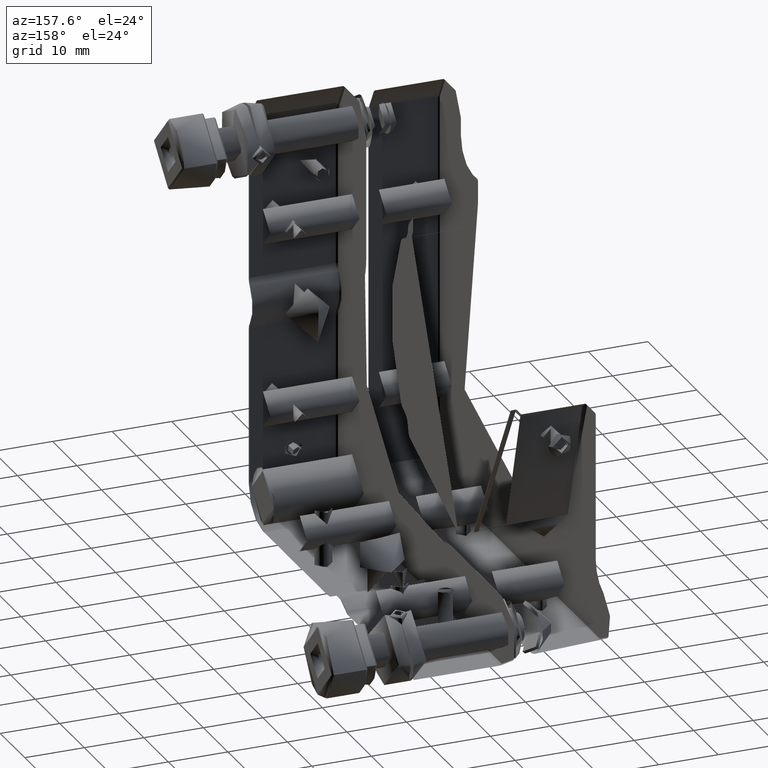
[diagram: clean part render]
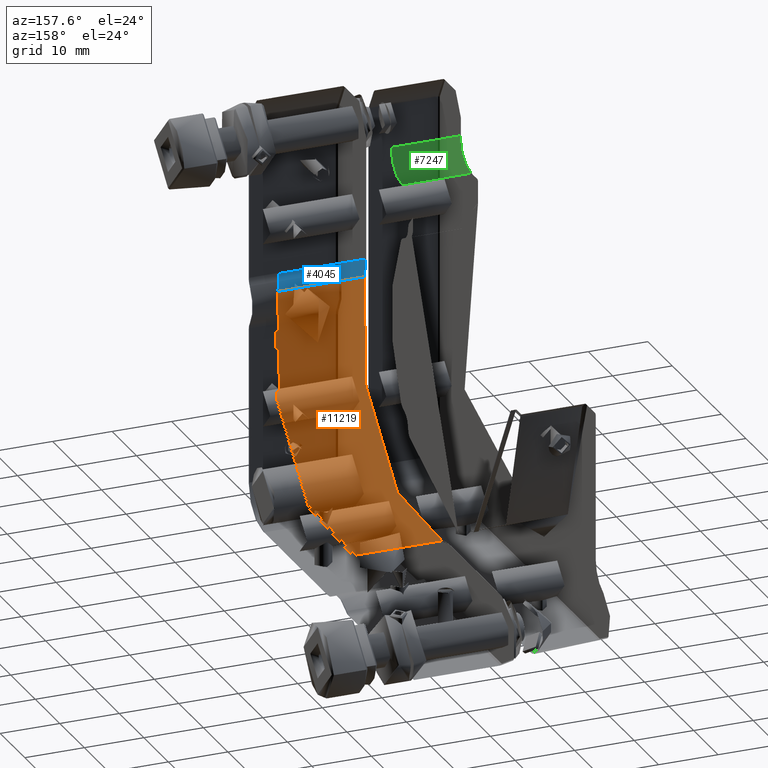
[diagram: same view with three faces highlighted in distinct colors, each labeled with its STEP entity id]
A machine part, auxiliary view with three faces highlighted in distinct colors.
Their STEP definitions:

[orange] entity #11219 — the highlighted cylindrical surface (partial cylindrical patch) has radius 25 mm, axis along (1, 0, 0).
#50 = CARTESIAN_POINT ( 'NONE',  ( 3.273873242885294133, -27.69120319725786317, 51.76312007283775785 ) ) ;
#64 = CARTESIAN_POINT ( 'NONE',  ( 10.00113001683670966, 0.9766342288857379206, 25.87352754220076534 ) ) ;
#123 = CARTESIAN_POINT ( 'NONE',  ( 10.28287489757706474, -27.71344598607095833, 50.12793082185242355 ) ) ;
#134 = CARTESIAN_POINT ( 'NONE',  ( 7.265468133704162668, 2.433194226710697627, 26.13625612694094613 ) ) ;
#195 = VERTEX_POINT ( 'NONE', #7940 ) ;
#196 = CARTESIAN_POINT ( 'NONE',  ( 3.299953574887351415, -27.64585130174290839, 52.50102717713715350 ) ) ;
#210 = CARTESIAN_POINT ( 'NONE',  ( 3.466382212514170114, -0.1074875647699910092, 25.73552941036338737 ) ) ;
#271 = CARTESIAN_POINT ( 'NONE',  ( 3.656119607611171496, -27.52932920605249123, 53.66655397209311218 ) ) ;
#418 = CARTESIAN_POINT ( 'NONE',  ( 5.137812428875689008, 1.932973826872373291, 26.03587686594990913 ) ) ;
#566 = FACE_BOUND ( 'NONE', #11548, .T. ) ;
#1045 = CARTESIAN_POINT ( 'NONE',  ( 9.506763672845808699, -27.67723634732844928, 49.17835109450631847 ) ) ;
#1113 = CARTESIAN_POINT ( 'NONE',  ( 7.521219772578337626, -27.60876644452097395, 48.27494671956478811 ) ) ;
#1185 = CARTESIAN_POINT ( 'NONE',  ( 3.766714016812477084, -27.71342763862443803, 50.12618406967465745 ) ) ;
#1260 = CARTESIAN_POINT ( 'NONE',  ( 9.502031261369594972, -27.35801694386234217, 54.82542223375834567 ) ) ;
#1333 = CARTESIAN_POINT ( 'NONE',  ( 10.74885028145612687, -27.64583575095340606, 52.50140545190906494 ) ) ;
#1346 = CARTESIAN_POINT ( 'NONE',  ( 4.195668267474858659, 1.157109249958580888, 25.90137745180575024 ) ) ;
#1926 = CARTESIAN_POINT ( 'NONE',  ( 4.541965836318080818, -27.67723710114381319, 49.17863191446870985 ) ) ;
#2002 = CARTESIAN_POINT ( 'NONE',  ( 3.654323267521220053, -2.980419281088630079, 25.60033672631038471 ) ) ;
#2046 = ORIENTED_EDGE ( 'NONE', *, *, #2264, .T. ) ;
#2139 = CARTESIAN_POINT ( 'NONE',  ( 10.68292656178153166, -2.278262408532561345, 25.59963113814684377 ) ) ;
#2193 = CARTESIAN_POINT ( 'NONE',  ( 10.77345944765936459, -27.66320733132643994, 52.25842280324155098 ) ) ;
#2203 = CARTESIAN_POINT ( 'NONE',  ( 10.27343706863608297, 0.5712492003034167487, 25.81635924465292220 ) ) ;
#2234 = VECTOR ( 'NONE', #6187, 1000.000000000000000 ) ;
#2264 = EDGE_CURVE ( 'NONE', #14096, #13342, #2354, .T. ) ;
#2270 = CARTESIAN_POINT ( 'NONE',  ( 10.39989606198359517, -27.71684027712199239, 50.34800180835369332 ) ) ;
#2343 = CARTESIAN_POINT ( 'NONE',  ( 10.01183918034666753, -27.70241773858794687, 49.72019314764617803 ) ) ;
#2354 = CIRCLE ( 'NONE', #4916, 25.00000000000000000 ) ;
#2418 = CARTESIAN_POINT ( 'NONE',  ( 8.691263178566254410, -27.63965803872548577, 48.63184016250288977 ) ) ;
#2455 = FACE_BOUND ( 'NONE', #3781, .T. ) ;
#2488 = CARTESIAN_POINT ( 'NONE',  ( 5.359049728303036275, -27.25819735188628101, 55.36889461507549726 ) ) ;
#2523 = DIRECTION ( 'NONE',  ( 0.000000000000000000, 0.000000000000000000, -1.000000000000000000 ) ) ;
#2577 = CARTESIAN_POINT ( 'NONE',  ( 6.775100157488094688, 2.432658544296108172, 26.13614335773878850 ) ) ;
#2592 = DIRECTION ( 'NONE',  ( -1.000000000000000000, -0.000000000000000000, -0.000000000000000000 ) ) ;
#2597 = CARTESIAN_POINT ( 'NONE',  ( 14.27438067708578906, 5.407908999789166060, 26.95714285714285197 ) ) ;
#2873 = VERTEX_POINT ( 'NONE', #13147 ) ;
#3099 = CARTESIAN_POINT ( 'NONE',  ( 3.369759775490074549, -2.292929379651696298, 25.59939666263960945 ) ) ;
#3161 = CARTESIAN_POINT ( 'NONE',  ( 5.820835509535819519, -4.877127549385903649, 25.69331524209809459 ) ) ;
#3199 = CIRCLE ( 'NONE', #9672, 25.00000000000000000 ) ;
#3239 = CARTESIAN_POINT ( 'NONE',  ( 10.57810858253414210, -0.09496710499693807039, 25.73684832099451825 ) ) ;
#3292 = CARTESIAN_POINT ( 'NONE',  ( 7.272655238768013675, -27.60637630899183037, 48.25000000000012790 ) ) ;
#3305 = CARTESIAN_POINT ( 'NONE',  ( 9.322785488902418649, -4.290288992119322131, 25.64917118819523623 ) ) ;
#3371 = EDGE_CURVE ( 'NONE', #2873, #14096, #12723, .T. ) ;
#3511 = CARTESIAN_POINT ( 'NONE',  ( 8.903185064813644800, -27.28033217635419660, 55.25459805577839489 ) ) ;
#3583 = CARTESIAN_POINT ( 'NONE',  ( 3.773213713538540848, -27.50120595058823270, 53.88455677447824144 ) ) ;
#3594 = CARTESIAN_POINT ( 'NONE',  ( 6.526006665298371701, 2.407771713671298386, 26.13086784741135915 ) ) ;
#3745 = DIRECTION ( 'NONE',  ( 1.000000000000000000, 0.000000000000000000, 0.000000000000000000 ) ) ;
#3781 = EDGE_LOOP ( 'NONE', ( #4118 ) ) ;
#3963 = DIRECTION ( 'NONE',  ( 0.000000000000000000, 0.000000000000000000, -1.000000000000000000 ) ) ;
#4094 = VERTEX_POINT ( 'NONE', #7152 ) ;
#4095 = CARTESIAN_POINT ( 'NONE',  ( 6.051850082481644577, -27.61746461390427143, 48.37003992513722039 ) ) ;
#4118 = ORIENTED_EDGE ( 'NONE', *, *, #13173, .T. ) ;
#4119 = CARTESIAN_POINT ( 'NONE',  ( -0.2256193229141847945, -2.717071376953227979, 50.60000000000000142 ) ) ;
#4120 = B_SPLINE_CURVE_WITH_KNOTS ( 'NONE', 3,
 ( #9741, #14185, #9599, #4095, #10759, #14037, #12952, #7443, #1926, #6354, #5763, #1185, #5463, #5684, #6926, #14318, #50, #8008, #196, #11263, #6853, #271, #3583, #10174, #12421, #8874, #13297, #10093, #2488, #7713, #5614, #13454, #8803, #4676, #4602, #5538, #4526, #9025, #3511, #6779, #1260, #7865, #7785, #12195, #9095, #7941, #6631, #1333, #2193, #11038, #9950, #10023, #12352, #2270, #123, #2343, #13526, #1045, #6709, #9877, #2418, #4384, #13223, #1113, #3292, #8945 ),
 .UNSPECIFIED., .T., .F.,
 ( 4, 2, 2, 2, 2, 2, 2, 2, 2, 2, 2, 2, 2, 2, 2, 2, 2, 2, 2, 2, 2, 2, 2, 2, 2, 2, 2, 2, 2, 2, 2, 2, 4 ),
 ( 0.000000000000000000, 0.0007342141488567177111, 0.001468428297713435422, 0.002202642446570153133, 0.002936856595426870845, 0.003671070744283588989, 0.004405284893140307134, 0.005139499041997025279, 0.005873713190853744291, 0.006607927339710462436, 0.007342141488567180581, 0.008076355637423898726, 0.008810569786280616003, 0.009544783935137335015, 0.01027899808399405403, 0.01101321223285077477, 0.01174742638170749379, 0.01248164053056421453, 0.01321585467942093875, 0.01395006882827766123, 0.01468428297713438371, 0.01541849712599110793, 0.01615271127484783215, 0.01688692542370455463, 0.01762113957256127364, 0.01835535372141799612, 0.01908956787027472207, 0.01982378201913144455, 0.02055799616798816704, 0.02129221031684488952, 0.02202642446570161200, 0.02276063861455833795, 0.02349485276341505696 ),
 .UNSPECIFIED. ) ;
#4257 = CARTESIAN_POINT ( 'NONE',  ( 5.367877768250804316, -4.690277423762418962, 25.67781618327954618 ) ) ;
#4321 = CARTESIAN_POINT ( 'NONE',  ( 10.40090345442435193, -2.967277570589978097, 25.60019708086608503 ) ) ;
#4384 = CARTESIAN_POINT ( 'NONE',  ( 8.237038456558950728, -27.62402226757516388, 48.44297047038492821 ) ) ;
#4397 = CARTESIAN_POINT ( 'NONE',  ( 3.274380677085801050, -1.813145994878148315, 25.61140694043983856 ) ) ;
#4467 = CARTESIAN_POINT ( 'NONE',  ( 4.042384012548370542, -3.604038437694180086, 25.61490806830886413 ) ) ;
#4526 = CARTESIAN_POINT ( 'NONE',  ( 8.234680959103341635, -27.22073257440850469, 55.55780066205291234 ) ) ;
#4536 = CARTESIAN_POINT ( 'NONE',  ( 3.299285067381039660, -0.8209368017646412330, 25.67084493651350030 ) ) ;
#4602 = CARTESIAN_POINT ( 'NONE',  ( 7.516370051862794277, -27.18603774369309178, 55.72562810829467139 ) ) ;
#4676 = CARTESIAN_POINT ( 'NONE',  ( 7.272323713401171119, -27.18086597662610870, 55.75002463932462149 ) ) ;
#4691 = CARTESIAN_POINT ( 'NONE',  ( 5.810488868969628129, 2.239531649730813534, 26.09609493520903101 ) ) ;
#4916 = AXIS2_PLACEMENT_3D ( 'NONE', #12304, #2592, #2523 ) ;
#5003 = EDGE_CURVE ( 'NONE', #4094, #4094, #4120, .T. ) ;
#5412 = CARTESIAN_POINT ( 'NONE',  ( 8.242681764329296001, -4.872129910892383009, 25.69287815241954576 ) ) ;
#5463 = CARTESIAN_POINT ( 'NONE',  ( 3.650502744892205609, -27.71679367991805165, 50.34490845893889599 ) ) ;
#5538 = CARTESIAN_POINT ( 'NONE',  ( 7.996278018899049655, -27.20584977892826117, 55.63012037034383894 ) ) ;
#5553 = CARTESIAN_POINT ( 'NONE',  ( 9.843032486328175068, 1.168293158063034909, 25.90315235233220292 ) ) ;
#5614 = CARTESIAN_POINT ( 'NONE',  ( 6.046123927460695491, -27.20619279668039070, 55.62845514921674805 ) ) ;
#5626 = CARTESIAN_POINT ( 'NONE',  ( 4.549049250283792034, -4.144747639183961496, 25.64019180049513480 ) ) ;
#5684 = CARTESIAN_POINT ( 'NONE',  ( 3.464025302745037393, -27.71731578932274331, 50.79739868658069213 ) ) ;
#5696 = CARTESIAN_POINT ( 'NONE',  ( 8.231015025126488638, 2.241875867444411252, 26.09657424454922392 ) ) ;
#5763 = CARTESIAN_POINT ( 'NONE',  ( 4.040805838875622946, -27.70224412356070687, 49.71486118693054124 ) ) ;
#5849 = CARTESIAN_POINT ( 'NONE',  ( 7.509367724377492337, 2.409647898381688691, 26.13126177317023391 ) ) ;
#5991 = CARTESIAN_POINT ( 'NONE',  ( 3.395462926844043050, -0.3406274307281807467, 25.71203880031490385 ) ) ;
#6187 = DIRECTION ( 'NONE',  ( -1.000000000000000000, -0.000000000000000000, -0.000000000000000000 ) ) ;
#6211 = CARTESIAN_POINT ( 'NONE',  ( -0.4756193229141988943, -2.717071376953227979, 50.60000000000000142 ) ) ;
#6354 = CARTESIAN_POINT ( 'NONE',  ( 4.196039534243950264, -27.69457486607213426, 49.52553284616131890 ) ) ;
#6438 = CARTESIAN_POINT ( 'NONE',  ( 4.200853716905480262, -3.797134727279527500, 25.62273537744596297 ) ) ;
#6449 = DIRECTION ( 'NONE',  ( -1.000000000000000000, -0.000000000000000000, -0.000000000000000000 ) ) ;
#6503 = CARTESIAN_POINT ( 'NONE',  ( 8.008550221003801539, -4.944035203017758562, 25.69933656287794932 ) ) ;
#6575 = CARTESIAN_POINT ( 'NONE',  ( 6.541436490017217942, -5.044082782080387517, 25.70848867042689889 ) ) ;
#6602 = FACE_OUTER_BOUND ( 'NONE', #13710, .T. ) ;
#6631 = CARTESIAN_POINT ( 'NONE',  ( 10.65136037504829680, -27.60432833713033673, 52.98392049051258113 ) ) ;
#6642 = CARTESIAN_POINT ( 'NONE',  ( 4.738341222318236845, -4.299848324848069225, 25.64977902956063360 ) ) ;
#6709 = CARTESIAN_POINT ( 'NONE',  ( 9.317464466672380041, -27.66764042084261277, 49.02272531252756238 ) ) ;
#6725 = CARTESIAN_POINT ( 'NONE',  ( 10.77630383658753743, -1.798029278330640190, 25.61196495853279131 ) ) ;
#6779 = CARTESIAN_POINT ( 'NONE',  ( 9.309992745167017247, -27.33024611915166346, 54.98300048713761612 ) ) ;
#6785 = VECTOR ( 'NONE', #3745, 1000.000000000000000 ) ;
#6791 = CARTESIAN_POINT ( 'NONE',  ( 3.274380677085801494, -1.317071376953230066, 25.63923078108368969 ) ) ;
#6853 = CARTESIAN_POINT ( 'NONE',  ( 3.467835740235976960, -27.58108907849559799, 53.21390810451431719 ) ) ;
#6890 = DIRECTION ( 'NONE',  ( 1.000000000000000000, 0.000000000000000000, 0.000000000000000000 ) ) ;
#6926 = CARTESIAN_POINT ( 'NONE',  ( 3.392358359770299092, -27.71446969653307235, 51.03462062750977424 ) ) ;
#7010 = CARTESIAN_POINT ( 'NONE',  ( 8.900088792325396625, 1.939421002532698779, 26.03709431619552461 ) ) ;
#7152 = CARTESIAN_POINT ( 'NONE',  ( 7.024380677085802382, -27.60637630899181616, 48.25000000000009237 ) ) ;
#7221 = CARTESIAN_POINT ( 'NONE',  ( 14.27438067708578906, -26.35992851981038854, 58.72498037674235860 ) ) ;
#7260 = EDGE_CURVE ( 'NONE', #13342, #9719, #11836, .T. ) ;
#7443 = CARTESIAN_POINT ( 'NONE',  ( 4.734997488984225456, -27.66745714858200245, 49.01981933259344260 ) ) ;
#7586 = CARTESIAN_POINT ( 'NONE',  ( 6.055432297454222734, -4.948185274833682534, 25.69970985862729762 ) ) ;
#7657 = CARTESIAN_POINT ( 'NONE',  ( 10.38889765894139039, 0.3570093726826459313, 25.78867658162985421 ) ) ;
#7713 = CARTESIAN_POINT ( 'NONE',  ( 5.812511992496362190, -27.22084085132273401, 55.55726754514895305 ) ) ;
#7725 = CARTESIAN_POINT ( 'NONE',  ( 9.511540612192048272, -4.134408478857380054, 25.63959390909844771 ) ) ;
#7785 = CARTESIAN_POINT ( 'NONE',  ( 10.00135945150191397, -27.44357421205701897, 54.29358198232304744 ) ) ;
#7865 = CARTESIAN_POINT ( 'NONE',  ( 9.846534757596483445, -27.41454774353198331, 54.48137251590213737 ) ) ;
#7899 = ORIENTED_EDGE ( 'NONE', *, *, #5003, .T. ) ;
#7940 = CARTESIAN_POINT ( 'NONE',  ( 3.545515919725984677, -2.717071376953168471, 25.59999999999999787 ) ) ;
#7941 = CARTESIAN_POINT ( 'NONE',  ( 10.57874779694410705, -27.58044092675209313, 53.21991285302606656 ) ) ;
#8008 = CARTESIAN_POINT ( 'NONE',  ( 3.274904759438118873, -27.66358914925260848, 52.25268252188431717 ) ) ;
#8020 = CARTESIAN_POINT ( 'NONE',  ( 3.771010528969974906, 0.5637085033816486845, 25.81536241545421362 ) ) ;
#8052 = AXIS2_PLACEMENT_3D ( 'NONE', #6211, #6890, #3963 ) ;
#8095 = CARTESIAN_POINT ( 'NONE',  ( 4.543641940081818653, 1.505891426485834961, 25.95861577612008730 ) ) ;
#8163 = EDGE_CURVE ( 'NONE', #2873, #9719, #3199, .T. ) ;
#8744 = CARTESIAN_POINT ( 'NONE',  ( 10.77337547889451308, -1.054440551578587071, 25.65411272089781747 ) ) ;
#8786 = ORIENTED_EDGE ( 'NONE', *, *, #3371, .T. ) ;
#8803 = CARTESIAN_POINT ( 'NONE',  ( 6.775692887976580536, -27.18087635831155069, 55.74997532369840059 ) ) ;
#8874 = CARTESIAN_POINT ( 'NONE',  ( 4.547010751371868054, -27.35794708822399102, 54.82592068380264294 ) ) ;
#8886 = CARTESIAN_POINT ( 'NONE',  ( 7.277107391226611099, -5.066550948653238073, 25.71064593030029499 ) ) ;
#8945 = CARTESIAN_POINT ( 'NONE',  ( 7.024380677085804159, -27.60637630899182682, 48.25000000000011369 ) ) ;
#8958 = CARTESIAN_POINT ( 'NONE',  ( 4.041450414972333149, 0.9685089279783952732, 25.87231764527072286 ) ) ;
#9025 = CARTESIAN_POINT ( 'NONE',  ( 8.688205082322992823, -27.25805245427160983, 55.36963806247685227 ) ) ;
#9095 = CARTESIAN_POINT ( 'NONE',  ( 10.39128429765708894, -27.52900644411487008, 53.66903355313550605 ) ) ;
#9108 = CARTESIAN_POINT ( 'NONE',  ( 6.044390578135107717, 2.310938009936086779, 26.11078672946551649 ) ) ;
#9599 = CARTESIAN_POINT ( 'NONE',  ( 6.532015674538288685, -27.60871551366644638, 48.27441244810898269 ) ) ;
#9672 = AXIS2_PLACEMENT_3D ( 'NONE', #4119, #6449, #12895 ) ;
#9719 = VERTEX_POINT ( 'NONE', #13954 ) ;
#9741 = CARTESIAN_POINT ( 'NONE',  ( 7.024380677085804159, -27.60637630899182682, 48.25000000000011369 ) ) ;
#9821 = CARTESIAN_POINT ( 'NONE',  ( 9.859172906251442825, -3.784318001436779433, 25.62217580881637247 ) ) ;
#9877 = CARTESIAN_POINT ( 'NONE',  ( 8.911043011015550519, -27.64889765608902650, 48.74993799005930839 ) ) ;
#9891 = CARTESIAN_POINT ( 'NONE',  ( 5.147309924840250517, -4.572764866935229655, 25.66859187667535025 ) ) ;
#9950 = CARTESIAN_POINT ( 'NONE',  ( 10.75164086551494336, -27.70129590304382461, 51.52011063842272875 ) ) ;
#9961 = CARTESIAN_POINT ( 'NONE',  ( 9.497821134590092029, 1.512049899493376204, 25.95969004798876512 ) ) ;
#10023 = CARTESIAN_POINT ( 'NONE',  ( 10.65727089066291278, -27.71439070810756888, 51.03829785915832673 ) ) ;
#10035 = CARTESIAN_POINT ( 'NONE',  ( 9.309459649097412637, 1.666456340849296502, 25.98691523479956444 ) ) ;
#10093 = CARTESIAN_POINT ( 'NONE',  ( 5.140186241622078711, -27.28093581533759604, 55.25140236224044799 ) ) ;
#10106 = CARTESIAN_POINT ( 'NONE',  ( 4.732895230458111335, 1.661355729752231891, 25.98601125754575492 ) ) ;
#10174 = CARTESIAN_POINT ( 'NONE',  ( 4.043850030799723605, -27.44428805241068758, 54.28868475934157800 ) ) ;
#10326 = CARTESIAN_POINT ( 'NONE',  ( 5.356474245970586523, 2.050575657442470945, 26.05863046315793241 ) ) ;
#10744 = CARTESIAN_POINT ( 'NONE',  ( -0.4756193229141988943, -26.35992851981038854, 58.72498037674235860 ) ) ;
#10759 = CARTESIAN_POINT ( 'NONE',  ( 5.813271522976322991, -27.62397536624831673, 48.44242956812792045 ) ) ;
#10914 = CARTESIAN_POINT ( 'NONE',  ( 8.695512047934423450, -4.683080684765359436, 25.67724326210041141 ) ) ;
#11038 = CARTESIAN_POINT ( 'NONE',  ( 10.77525161532054021, -27.69092578362059243, 51.76904290894931648 ) ) ;
#11054 = CARTESIAN_POINT ( 'NONE',  ( 10.65104705635584281, -0.3324983230795517386, 25.71282509011523132 ) ) ;
#11128 = CARTESIAN_POINT ( 'NONE',  ( 10.74808537105086970, -0.8109918603905388323, 25.67161207536679157 ) ) ;
#11208 = ORIENTED_EDGE ( 'NONE', *, *, #8163, .F. ) ;
#11219 = ADVANCED_FACE ( 'NONE', ( #6602, #566, #2455 ), #12876, .T. ) ;
#11263 = CARTESIAN_POINT ( 'NONE',  ( 3.396654302632768019, -27.60461284024720996, 52.98080926989823070 ) ) ;
#11427 = CARTESIAN_POINT ( 'NONE',  ( 3.653865638827169526, 0.3448776142803284817, 25.78717481319797500 ) ) ;
#11497 = CARTESIAN_POINT ( 'NONE',  ( 3.274380677085801494, -1.069034067990775494, 25.65314270140561348 ) ) ;
#11548 = EDGE_LOOP ( 'NONE', ( #7899 ) ) ;
#11836 = LINE ( 'NONE', #10744, #2234 ) ;
#12002 = CARTESIAN_POINT ( 'NONE',  ( 7.524530608794708364, -5.041760133422417134, 25.70826985368488948 ) ) ;
#12133 = CARTESIAN_POINT ( 'NONE',  ( 3.770177749994743088, -3.196615405045799552, 25.60376894555865945 ) ) ;
#12147 = ORIENTED_EDGE ( 'NONE', *, *, #7260, .T. ) ;
#12195 = CARTESIAN_POINT ( 'NONE',  ( 10.27528224390614042, -27.50111743500389849, 53.88535406112647763 ) ) ;
#12209 = CARTESIAN_POINT ( 'NONE',  ( 6.787341780911109623, -5.067575398059774194, 25.71074265648983470 ) ) ;
#12304 = CARTESIAN_POINT ( 'NONE',  ( 14.27438067708578906, -2.717071376953227979, 50.60000000000000142 ) ) ;
#12352 = CARTESIAN_POINT ( 'NONE',  ( 10.58702207972174847, -27.71727928883989378, 50.80384433491762763 ) ) ;
#12421 = CARTESIAN_POINT ( 'NONE',  ( 4.198605728425221173, -27.41516593524848489, 54.47753615503341962 ) ) ;
#12435 = CARTESIAN_POINT ( 'NONE',  ( 7.994536306681041538, 2.313692598790469734, 26.11135334973428002 ) ) ;
#12584 = CARTESIAN_POINT ( 'NONE',  ( -0.4756193229141988943, 5.407908999789166948, 26.95714285714285197 ) ) ;
#12723 = LINE ( 'NONE', #12584, #6785 ) ;
#12876 = CYLINDRICAL_SURFACE ( 'NONE', #8052, 25.00000000000000000 ) ;
#12895 = DIRECTION ( 'NONE',  ( 0.000000000000000000, 0.000000000000000000, 1.000000000000000000 ) ) ;
#12952 = CARTESIAN_POINT ( 'NONE',  ( 5.143014014641191345, -27.64866633201634016, 48.74681514915186398 ) ) ;
#13147 = CARTESIAN_POINT ( 'NONE',  ( -0.2256193229141844891, 5.407908999789171389, 26.95714285714285552 ) ) ;
#13173 = EDGE_CURVE ( 'NONE', #195, #195, #13657, .T. ) ;
#13223 = CARTESIAN_POINT ( 'NONE',  ( 8.003026686175635618, -27.61760731443283134, 48.37162253647951360 ) ) ;
#13237 = CARTESIAN_POINT ( 'NONE',  ( 8.915826387483503979, -4.564396551729213769, 25.66796715549864771 ) ) ;
#13297 = CARTESIAN_POINT ( 'NONE',  ( 4.735487750443908794, -27.33070762085657535, 54.98039849050158523 ) ) ;
#13308 = CARTESIAN_POINT ( 'NONE',  ( 10.01600630062045205, -3.591370774678555033, 25.61446070041161960 ) ) ;
#13342 = VERTEX_POINT ( 'NONE', #7221 ) ;
#13454 = CARTESIAN_POINT ( 'NONE',  ( 6.527139971116391770, -27.18617597138677411, 55.72497311646561258 ) ) ;
#13526 = CARTESIAN_POINT ( 'NONE',  ( 9.856527799495031772, -27.69476476975928847, 49.52960113331039338 ) ) ;
#13603 = CARTESIAN_POINT ( 'NONE',  ( 8.682158158254679847, 2.055441893770333373, 26.05958132780995484 ) ) ;
#13657 = B_SPLINE_CURVE_WITH_KNOTS ( 'NONE', 3,
 ( #14198, #4397, #3099, #2002, #12133, #4467, #6438, #5626, #6642, #9891, #4257, #3161, #7586, #6575, #12209, #8886, #12002, #6503, #5412, #10914, #13237, #3305, #7725, #9821, #13308, #14261, #4321, #2139, #6725, #8744, #11128, #11054, #3239, #7657, #2203, #64, #5553, #9961, #10035, #7010, #13603, #5696, #12435, #5849, #134, #2577, #3594, #9108, #4691, #10326, #418, #10106, #8095, #1346, #8958, #8020, #11427, #210, #5991, #4536, #11497, #6791 ),
 .UNSPECIFIED., .T., .F.,
 ( 4, 2, 2, 2, 2, 2, 2, 2, 2, 2, 2, 2, 2, 2, 2, 2, 2, 2, 2, 2, 2, 2, 2, 2, 2, 2, 2, 2, 2, 2, 4 ),
 ( -0.001432839825804479907, 3.642533540547648191E-05, 0.0007710579160104535923, 0.001505690496615431570, 0.002240323077220406946, 0.002974955657825381888, 0.003709588238430358131, 0.004444220819035333073, 0.005178853399640309316, 0.005913485980245282089, 0.006648118560850254863, 0.007382751141455227636, 0.008117383722060198675, 0.008852016302665171449, 0.01032128146387511526, 0.01105591404448008457, 0.01179054662508505560, 0.01252517920569002491, 0.01325981178629499768, 0.01399444436689996699, 0.01472907694750493802, 0.01546370952810990733, 0.01619834210871487837, 0.01693297468931984767, 0.01766760726992481351, 0.01840223985052978281, 0.01913687243113474865, 0.01987150501173971795, 0.02060613759234468725, 0.02134077017294965656, 0.02207540275355461892 ),
 .UNSPECIFIED. ) ;
#13710 = EDGE_LOOP ( 'NONE', ( #8786, #2046, #12147, #11208 ) ) ;
#13954 = CARTESIAN_POINT ( 'NONE',  ( -0.2256193229141850443, -26.35992851981038854, 58.72498037674235860 ) ) ;
#14037 = CARTESIAN_POINT ( 'NONE',  ( 5.358618269508118814, -27.63961311226183781, 48.63127199637617082 ) ) ;
#14096 = VERTEX_POINT ( 'NONE', #2597 ) ;
#14185 = CARTESIAN_POINT ( 'NONE',  ( 6.776106115403596419, -27.60637630899182327, 48.25000000000009237 ) ) ;
#14198 = CARTESIAN_POINT ( 'NONE',  ( 3.274380677085801494, -1.317071376953230066, 25.63923078108368969 ) ) ;
#14261 = CARTESIAN_POINT ( 'NONE',  ( 10.28595441441299663, -3.183725704315529370, 25.60352410304819770 ) ) ;
#14318 = CARTESIAN_POINT ( 'NONE',  ( 3.297095597455777405, -27.70133352458540799, 51.51949049803881309 ) ) ;

[blue] entity #4045 — the highlighted cylindrical surface (partial cylindrical patch) has radius 10 mm, axis along (1, 0, 0).
#142 = ORIENTED_EDGE ( 'NONE', *, *, #7260, .F. ) ;
#252 = CARTESIAN_POINT ( 'NONE',  ( -0.4756193229141988943, -35.81707137695325116, 61.97497252743929153 ) ) ;
#520 = EDGE_CURVE ( 'NONE', #9339, #4747, #1647, .T. ) ;
#1207 = AXIS2_PLACEMENT_3D ( 'NONE', #8514, #4090, #13081 ) ;
#1647 = LINE ( 'NONE', #12884, #11624 ) ;
#2234 = VECTOR ( 'NONE', #6187, 1000.000000000000000 ) ;
#2545 = DIRECTION ( 'NONE',  ( 0.000000000000000000, 0.000000000000000000, -1.000000000000000000 ) ) ;
#2767 = EDGE_CURVE ( 'NONE', #4747, #13342, #13029, .T. ) ;
#2854 = AXIS2_PLACEMENT_3D ( 'NONE', #252, #12476, #2545 ) ;
#4045 = ADVANCED_FACE ( 'NONE', ( #8134 ), #4876, .F. ) ;
#4090 = DIRECTION ( 'NONE',  ( -1.000000000000000000, -0.000000000000000000, -0.000000000000000000 ) ) ;
#4533 = ORIENTED_EDGE ( 'NONE', *, *, #520, .F. ) ;
#4747 = VERTEX_POINT ( 'NONE', #8399 ) ;
#4876 = CYLINDRICAL_SURFACE ( 'NONE', #2854, 10.00000000000000178 ) ;
#5018 = EDGE_CURVE ( 'NONE', #9339, #9719, #6147, .T. ) ;
#6147 = CIRCLE ( 'NONE', #12850, 10.00000000000000178 ) ;
#6187 = DIRECTION ( 'NONE',  ( -1.000000000000000000, -0.000000000000000000, -0.000000000000000000 ) ) ;
#7221 = CARTESIAN_POINT ( 'NONE',  ( 14.27438067708578906, -26.35992851981038854, 58.72498037674235860 ) ) ;
#7260 = EDGE_CURVE ( 'NONE', #13342, #9719, #11836, .T. ) ;
#7454 = DIRECTION ( 'NONE',  ( 1.000000000000000000, 0.000000000000000000, 0.000000000000000000 ) ) ;
#8134 = FACE_OUTER_BOUND ( 'NONE', #14215, .T. ) ;
#8399 = CARTESIAN_POINT ( 'NONE',  ( 14.27438067708578906, -25.81707137695325116, 61.97497252743929153 ) ) ;
#8514 = CARTESIAN_POINT ( 'NONE',  ( 14.27438067708578906, -35.81707137695325116, 61.97497252743929153 ) ) ;
#8585 = ORIENTED_EDGE ( 'NONE', *, *, #5018, .T. ) ;
#9339 = VERTEX_POINT ( 'NONE', #9394 ) ;
#9394 = CARTESIAN_POINT ( 'NONE',  ( -0.2256193229141826850, -25.81707137695325116, 61.97497252743929153 ) ) ;
#9719 = VERTEX_POINT ( 'NONE', #13954 ) ;
#10744 = CARTESIAN_POINT ( 'NONE',  ( -0.4756193229141988943, -26.35992851981038854, 58.72498037674235860 ) ) ;
#11116 = CARTESIAN_POINT ( 'NONE',  ( -0.2256193229141847945, -35.81707137695325116, 61.97497252743929153 ) ) ;
#11191 = DIRECTION ( 'NONE',  ( 0.000000000000000000, 1.387778780781445360E-14, -1.000000000000000000 ) ) ;
#11624 = VECTOR ( 'NONE', #7454, 1000.000000000000000 ) ;
#11652 = ORIENTED_EDGE ( 'NONE', *, *, #2767, .F. ) ;
#11836 = LINE ( 'NONE', #10744, #2234 ) ;
#12276 = DIRECTION ( 'NONE',  ( -1.000000000000000000, -0.000000000000000000, -0.000000000000000000 ) ) ;
#12476 = DIRECTION ( 'NONE',  ( 1.000000000000000000, 0.000000000000000000, 0.000000000000000000 ) ) ;
#12850 = AXIS2_PLACEMENT_3D ( 'NONE', #11116, #12276, #11191 ) ;
#12884 = CARTESIAN_POINT ( 'NONE',  ( -0.4756193229141988943, -25.81707137695325116, 61.97497252743929153 ) ) ;
#13029 = CIRCLE ( 'NONE', #1207, 10.00000000000000178 ) ;
#13081 = DIRECTION ( 'NONE',  ( 0.000000000000000000, 6.245004513516504751E-15, -1.000000000000000000 ) ) ;
#13342 = VERTEX_POINT ( 'NONE', #7221 ) ;
#13954 = CARTESIAN_POINT ( 'NONE',  ( -0.2256193229141850443, -26.35992851981038854, 58.72498037674235860 ) ) ;
#14215 = EDGE_LOOP ( 'NONE', ( #4533, #8585, #142, #11652 ) ) ;

[green] entity #7247 — the highlighted cylindrical surface (edge-blend (fillet) strip) has radius 4.5 mm, axis along (-1, -0, -0).
#494 = CARTESIAN_POINT ( 'NONE',  ( -5.170900697152259085, -27.31707137697095789, 79.50000000000004263 ) ) ;
#644 = CARTESIAN_POINT ( 'NONE',  ( -5.170900697159693138, -22.81707137695320853, 74.99999999999718625 ) ) ;
#797 = CARTESIAN_POINT ( 'NONE',  ( -4.970900697152736747, -22.81707137695320853, 75.00000000000004263 ) ) ;
#824 = CARTESIAN_POINT ( 'NONE',  ( -16.77090069715272591, -22.81707137695320853, 75.00000000000004263 ) ) ;
#1101 = ORIENTED_EDGE ( 'NONE', *, *, #8255, .F. ) ;
#1135 = CYLINDRICAL_SURFACE ( 'NONE', #3406, 4.500000000000003553 ) ;
#1154 = DIRECTION ( 'NONE',  ( 1.000000000000000000, 0.000000000000000000, 0.000000000000000000 ) ) ;
#1327 = EDGE_CURVE ( 'NONE', #1683, #6102, #2341, .T. ) ;
#1352 = VECTOR ( 'NONE', #2317, 1000.000000000000000 ) ;
#1683 = VERTEX_POINT ( 'NONE', #1999 ) ;
#1999 = CARTESIAN_POINT ( 'NONE',  ( -16.77090069714225962, -27.31707137695389420, 79.50000000000004263 ) ) ;
#2277 = DIRECTION ( 'NONE',  ( 1.000000000000000000, 0.000000000000000000, 0.000000000000000000 ) ) ;
#2317 = DIRECTION ( 'NONE',  ( -1.000000000000000000, -0.000000000000000000, -0.000000000000000000 ) ) ;
#2341 = CIRCLE ( 'NONE', #3509, 4.500000000000003553 ) ;
#3217 = EDGE_LOOP ( 'NONE', ( #11960, #10068, #9785, #1101 ) ) ;
#3406 = AXIS2_PLACEMENT_3D ( 'NONE', #5559, #4542, #4405 ) ;
#3509 = AXIS2_PLACEMENT_3D ( 'NONE', #5406, #2277, #13302 ) ;
#4052 = LINE ( 'NONE', #797, #9904 ) ;
#4405 = DIRECTION ( 'NONE',  ( 0.000000000000000000, 0.000000000000000000, 1.000000000000000000 ) ) ;
#4542 = DIRECTION ( 'NONE',  ( -1.000000000000000000, -0.000000000000000000, -0.000000000000000000 ) ) ;
#4887 = VERTEX_POINT ( 'NONE', #494 ) ;
#5406 = CARTESIAN_POINT ( 'NONE',  ( -16.77090069715272591, -22.81707137695320853, 79.50000000000004263 ) ) ;
#5559 = CARTESIAN_POINT ( 'NONE',  ( -4.970900697152736747, -22.81707137695320853, 79.50000000000004263 ) ) ;
#5578 = DIRECTION ( 'NONE',  ( 0.000000000000000000, 0.000000000000000000, -1.000000000000000000 ) ) ;
#6102 = VERTEX_POINT ( 'NONE', #824 ) ;
#7247 = ADVANCED_FACE ( 'NONE', ( #14341 ), #1135, .T. ) ;
#7619 = CIRCLE ( 'NONE', #9466, 4.500000000011411316 ) ;
#7827 = CARTESIAN_POINT ( 'NONE',  ( -5.170900697180513816, -22.81707137695320853, 79.50000000000004263 ) ) ;
#8255 = EDGE_CURVE ( 'NONE', #14139, #6102, #4052, .T. ) ;
#8780 = LINE ( 'NONE', #13200, #1352 ) ;
#9466 = AXIS2_PLACEMENT_3D ( 'NONE', #7827, #1154, #5578 ) ;
#9785 = ORIENTED_EDGE ( 'NONE', *, *, #1327, .T. ) ;
#9904 = VECTOR ( 'NONE', #14060, 1000.000000000000000 ) ;
#10068 = ORIENTED_EDGE ( 'NONE', *, *, #12767, .T. ) ;
#11119 = EDGE_CURVE ( 'NONE', #4887, #14139, #7619, .T. ) ;
#11960 = ORIENTED_EDGE ( 'NONE', *, *, #11119, .F. ) ;
#12767 = EDGE_CURVE ( 'NONE', #4887, #1683, #8780, .T. ) ;
#13200 = CARTESIAN_POINT ( 'NONE',  ( -4.970900697152736747, -27.31707137695321208, 79.50000000000004263 ) ) ;
#13302 = DIRECTION ( 'NONE',  ( 0.000000000000000000, 0.000000000000000000, 1.000000000000000000 ) ) ;
#14060 = DIRECTION ( 'NONE',  ( -1.000000000000000000, 0.000000000000000000, -0.000000000000000000 ) ) ;
#14139 = VERTEX_POINT ( 'NONE', #644 ) ;
#14341 = FACE_OUTER_BOUND ( 'NONE', #3217, .T. ) ;